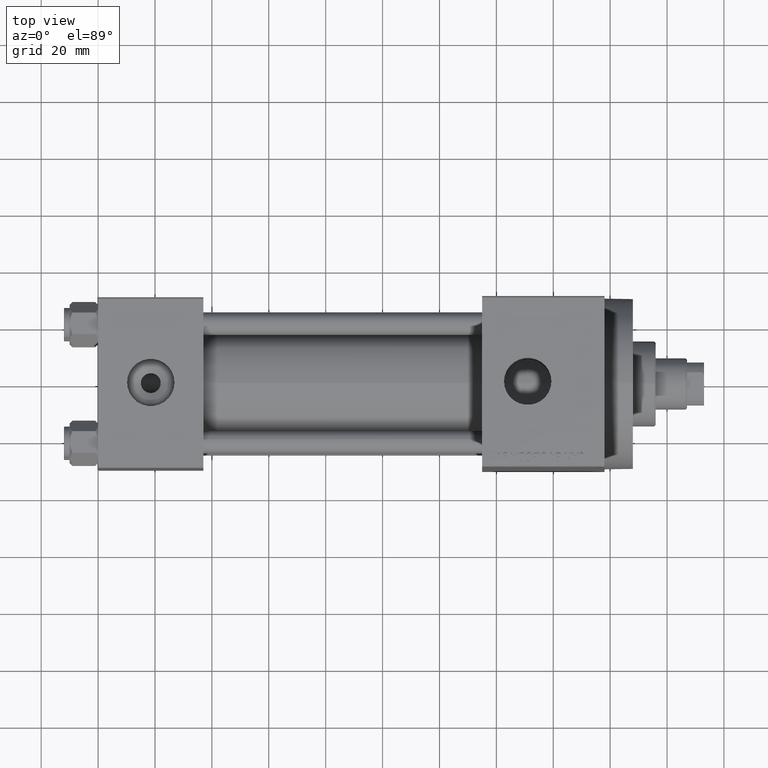
[diagram: clean part render]
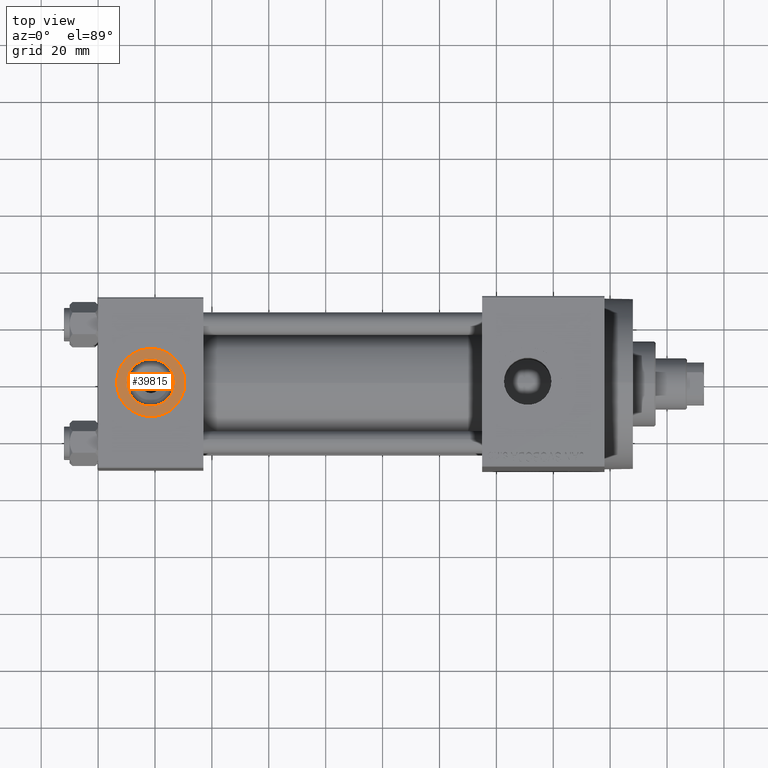
[diagram: same view with one face highlighted and labeled with its STEP entity id]
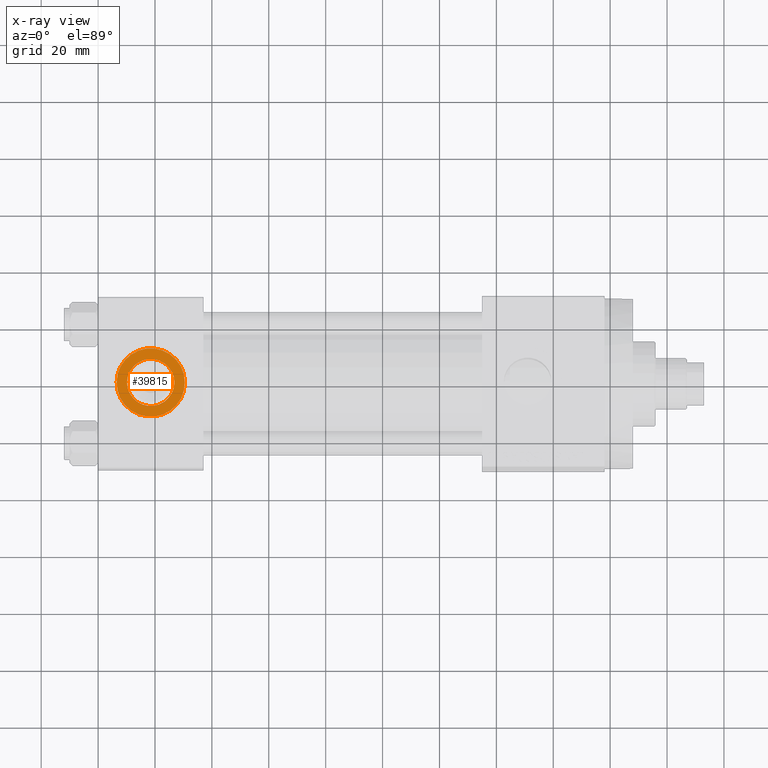
[diagram: x-ray of the same camera — body ghosted, the highlighted face saturated]
A machine part, top view. The second image highlights one B-rep face of the part: STEP entity #39815.
The next image is the same camera in x-ray: the body ghosted, the highlighted face saturated — about 0% of this face is hidden behind the body in this view.
In plain terms, the highlighted planar face has unit normal (0, 0, 1).
Its self-contained STEP definition (entity closure, byte-faithful):
#97 = DIRECTION ( 'NONE',  ( 1.000000000000000000, 0.000000000000000000, 0.000000000000000000 ) ) ;
#1481 = CIRCLE ( 'NONE', #32043, 12.00000000000000000 ) ;
#3684 = DIRECTION ( 'NONE',  ( 0.000000000000000000, 0.000000000000000000, 1.000000000000000000 ) ) ;
#4197 = DIRECTION ( 'NONE',  ( 1.000000000000000000, 0.000000000000000000, 0.000000000000000000 ) ) ;
#4398 = EDGE_LOOP ( 'NONE', ( #12444, #35990 ) ) ;
#6962 = AXIS2_PLACEMENT_3D ( 'NONE', #28306, #40634, #20904 ) ;
#7678 = FACE_BOUND ( 'NONE', #4398, .T. ) ;
#8320 = CIRCLE ( 'NONE', #35020, 8.330000000000000071 ) ;
#9354 = EDGE_LOOP ( 'NONE', ( #45614, #43787 ) ) ;
#9597 = DIRECTION ( 'NONE',  ( 1.000000000000000000, 0.000000000000000000, 0.000000000000000000 ) ) ;
#11052 = PLANE ( 'NONE',  #6962 ) ;
#11539 = VERTEX_POINT ( 'NONE', #41385 ) ;
#12444 = ORIENTED_EDGE ( 'NONE', *, *, #13920, .F. ) ;
#13920 = EDGE_CURVE ( 'NONE', #11539, #38622, #8320, .T. ) ;
#14869 = FACE_OUTER_BOUND ( 'NONE', #9354, .T. ) ;
#17407 = AXIS2_PLACEMENT_3D ( 'NONE', #32592, #3684, #97 ) ;
#18423 = CIRCLE ( 'NONE', #29079, 8.330000000000000071 ) ;
#18774 = EDGE_CURVE ( 'NONE', #20759, #35119, #1481, .T. ) ;
#18883 = DIRECTION ( 'NONE',  ( 1.000000000000000000, 0.000000000000000000, 0.000000000000000000 ) ) ;
#20759 = VERTEX_POINT ( 'NONE', #24977 ) ;
#20904 = DIRECTION ( 'NONE',  ( 1.000000000000000000, 0.000000000000000000, -0.000000000000000000 ) ) ;
#22467 = EDGE_CURVE ( 'NONE', #38622, #11539, #18423, .T. ) ;
#24830 = CARTESIAN_POINT ( 'NONE',  ( 10.16999999999999638, -2.449316168263869821E-15, 29.79999999999999716 ) ) ;
#24977 = CARTESIAN_POINT ( 'NONE',  ( 6.499999999999997335, -1.999870792976790833E-15, 29.79999999999999716 ) ) ;
#25477 = DIRECTION ( 'NONE',  ( 0.000000000000000000, 0.000000000000000000, 1.000000000000000000 ) ) ;
#25795 = CIRCLE ( 'NONE', #17407, 12.00000000000000000 ) ;
#28306 = CARTESIAN_POINT ( 'NONE',  ( 18.50000000000000000, -3.469446951953614978E-15, 29.79999999999999716 ) ) ;
#28460 = DIRECTION ( 'NONE',  ( 0.000000000000000000, 0.000000000000000000, 1.000000000000000000 ) ) ;
#29079 = AXIS2_PLACEMENT_3D ( 'NONE', #33213, #29848, #18883 ) ;
#29848 = DIRECTION ( 'NONE',  ( 0.000000000000000000, 0.000000000000000000, 1.000000000000000000 ) ) ;
#32043 = AXIS2_PLACEMENT_3D ( 'NONE', #36912, #25477, #4197 ) ;
#32592 = CARTESIAN_POINT ( 'NONE',  ( 18.50000000000000000, -3.469446951953614978E-15, 29.79999999999999716 ) ) ;
#32645 = EDGE_CURVE ( 'NONE', #35119, #20759, #25795, .T. ) ;
#33213 = CARTESIAN_POINT ( 'NONE',  ( 18.50000000000000000, -3.469446951953614978E-15, 29.79999999999999716 ) ) ;
#33315 = CARTESIAN_POINT ( 'NONE',  ( 30.50000000000000000, -3.469446951953614978E-15, 29.79999999999999716 ) ) ;
#35020 = AXIS2_PLACEMENT_3D ( 'NONE', #39191, #28460, #9597 ) ;
#35119 = VERTEX_POINT ( 'NONE', #33315 ) ;
#35990 = ORIENTED_EDGE ( 'NONE', *, *, #22467, .F. ) ;
#36912 = CARTESIAN_POINT ( 'NONE',  ( 18.50000000000000000, -3.469446951953614978E-15, 29.79999999999999716 ) ) ;
#38622 = VERTEX_POINT ( 'NONE', #24830 ) ;
#39191 = CARTESIAN_POINT ( 'NONE',  ( 18.50000000000000000, -3.469446951953614978E-15, 29.79999999999999716 ) ) ;
#39815 = ADVANCED_FACE ( 'NONE', ( #7678, #14869 ), #11052, .T. ) ;
#40634 = DIRECTION ( 'NONE',  ( 0.000000000000000000, 0.000000000000000000, 1.000000000000000000 ) ) ;
#41385 = CARTESIAN_POINT ( 'NONE',  ( 26.82999999999999829, -3.469446951953614978E-15, 29.79999999999999716 ) ) ;
#43787 = ORIENTED_EDGE ( 'NONE', *, *, #18774, .T. ) ;
#45614 = ORIENTED_EDGE ( 'NONE', *, *, #32645, .T. ) ;